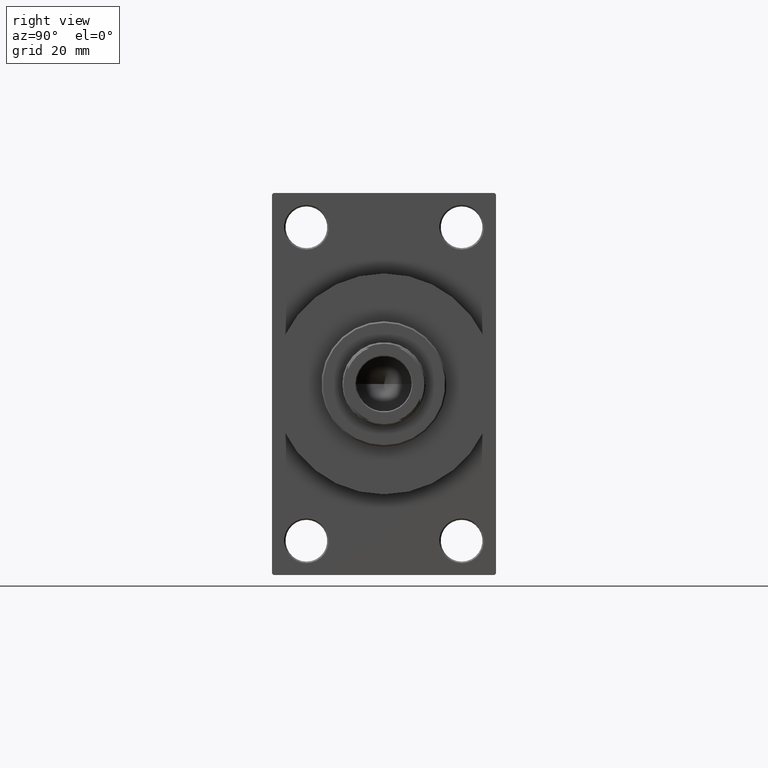
[diagram: clean part render]
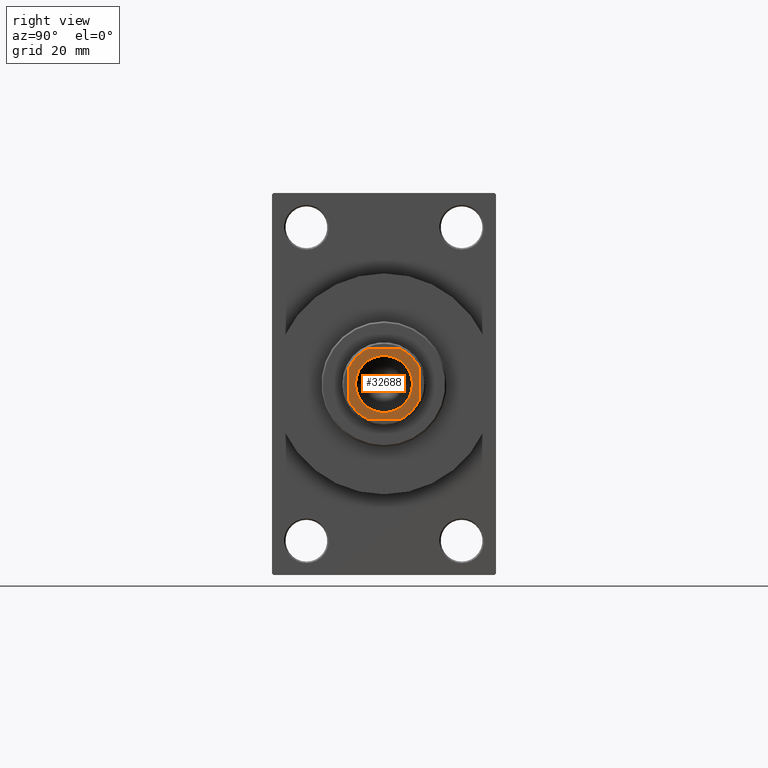
[diagram: same view with one face highlighted and labeled with its STEP entity id]
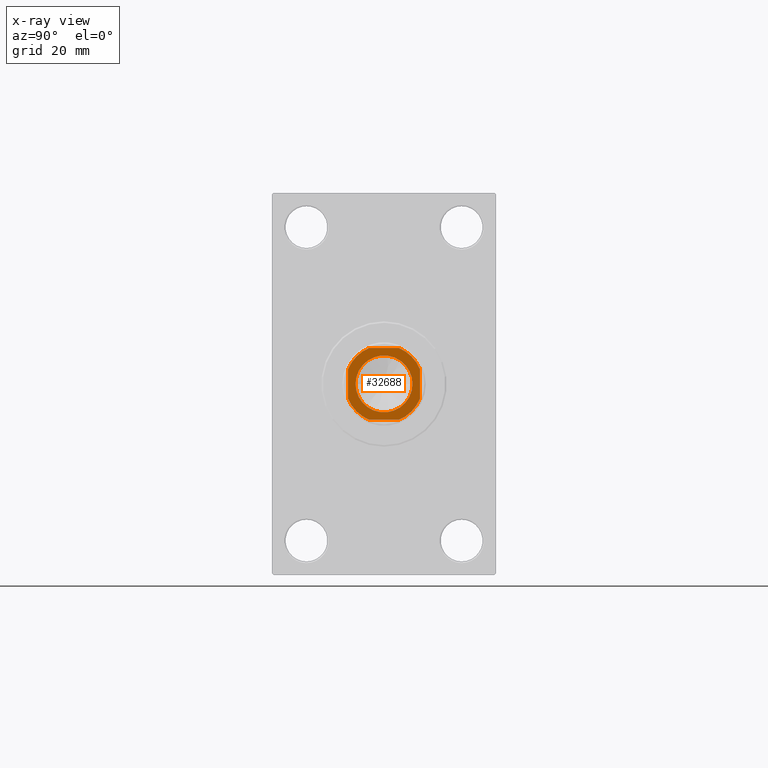
[diagram: x-ray of the same camera — body ghosted, the highlighted face saturated]
A machine part, right view. The second image highlights one B-rep face of the part: STEP entity #32688.
The next image is the same camera in x-ray: the body ghosted, the highlighted face saturated — about 0% of this face is hidden behind the body in this view.
In plain terms, the highlighted planar face has unit normal (1, 0, 0).
Its self-contained STEP definition (entity closure, byte-faithful):
#61 = LINE ( 'NONE', #43493, #40673 ) ;
#232 = VERTEX_POINT ( 'NONE', #24885 ) ;
#336 = EDGE_CURVE ( 'NONE', #10361, #18054, #23537, .T. ) ;
#607 = CARTESIAN_POINT ( 'NONE',  ( -12.00000000000000000, 12.00000000000000000, 142.0000000000000284 ) ) ;
#954 = LINE ( 'NONE', #26512, #23124 ) ;
#1001 = AXIS2_PLACEMENT_3D ( 'NONE', #9602, #27983, #34907 ) ;
#1076 = EDGE_CURVE ( 'NONE', #26647, #11304, #35738, .T. ) ;
#1418 = DIRECTION ( 'NONE',  ( 1.000000000000000000, 0.000000000000000000, 0.000000000000000000 ) ) ;
#1480 = VERTEX_POINT ( 'NONE', #26483 ) ;
#2686 = CARTESIAN_POINT ( 'NONE',  ( 0.000000000000000000, 0.000000000000000000, 142.0000000000000284 ) ) ;
#3302 = CIRCLE ( 'NONE', #1001, 9.550000000000002487 ) ;
#3362 = FACE_OUTER_BOUND ( 'NONE', #35276, .T. ) ;
#3607 = AXIS2_PLACEMENT_3D ( 'NONE', #21987, #36550, #18413 ) ;
#3717 = DIRECTION ( 'NONE',  ( 1.000000000000000000, 0.000000000000000000, 0.000000000000000000 ) ) ;
#4104 = CARTESIAN_POINT ( 'NONE',  ( 0.000000000000000000, 0.000000000000000000, 142.0000000000000284 ) ) ;
#6705 = ORIENTED_EDGE ( 'NONE', *, *, #19134, .T. ) ;
#7294 = EDGE_CURVE ( 'NONE', #232, #26647, #18543, .T. ) ;
#8976 = VERTEX_POINT ( 'NONE', #11883 ) ;
#9602 = CARTESIAN_POINT ( 'NONE',  ( 0.000000000000000000, 0.000000000000000000, 142.0000000000000284 ) ) ;
#10172 = CIRCLE ( 'NONE', #24657, 9.550000000000002487 ) ;
#10361 = VERTEX_POINT ( 'NONE', #19261 ) ;
#11304 = VERTEX_POINT ( 'NONE', #45960 ) ;
#11883 = CARTESIAN_POINT ( 'NONE',  ( 9.550000000000002487, 0.000000000000000000, 142.0000000000000284 ) ) ;
#13233 = AXIS2_PLACEMENT_3D ( 'NONE', #43598, #21425, #35978 ) ;
#14252 = ORIENTED_EDGE ( 'NONE', *, *, #1076, .T. ) ;
#14912 = VERTEX_POINT ( 'NONE', #34013 ) ;
#15443 = EDGE_CURVE ( 'NONE', #11304, #14912, #954, .T. ) ;
#15534 = AXIS2_PLACEMENT_3D ( 'NONE', #26358, #16077, #26592 ) ;
#15678 = ORIENTED_EDGE ( 'NONE', *, *, #19948, .T. ) ;
#16077 = DIRECTION ( 'NONE',  ( -0.000000000000000000, 0.000000000000000000, 1.000000000000000000 ) ) ;
#16553 = EDGE_CURVE ( 'NONE', #14912, #1480, #33828, .T. ) ;
#17595 = ORIENTED_EDGE ( 'NONE', *, *, #36576, .T. ) ;
#17939 = PLANE ( 'NONE',  #3607 ) ;
#18054 = VERTEX_POINT ( 'NONE', #34685 ) ;
#18091 = LINE ( 'NONE', #32642, #36423 ) ;
#18328 = DIRECTION ( 'NONE',  ( -1.000000000000000000, -0.000000000000000000, -0.000000000000000000 ) ) ;
#18413 = DIRECTION ( 'NONE',  ( 1.000000000000000000, 0.000000000000000000, 0.000000000000000000 ) ) ;
#18543 = LINE ( 'NONE', #607, #29850 ) ;
#19134 = EDGE_CURVE ( 'NONE', #8976, #46398, #3302, .T. ) ;
#19261 = CARTESIAN_POINT ( 'NONE',  ( 12.00000000000000000, 4.999999999999976907, 142.0000000000000284 ) ) ;
#19948 = EDGE_CURVE ( 'NONE', #20672, #232, #43741, .T. ) ;
#20166 = EDGE_CURVE ( 'NONE', #1480, #10361, #61, .T. ) ;
#20239 = ORIENTED_EDGE ( 'NONE', *, *, #20166, .T. ) ;
#20672 = VERTEX_POINT ( 'NONE', #33585 ) ;
#21270 = AXIS2_PLACEMENT_3D ( 'NONE', #2686, #28234, #42530 ) ;
#21425 = DIRECTION ( 'NONE',  ( -0.000000000000000000, 0.000000000000000000, 1.000000000000000000 ) ) ;
#21987 = CARTESIAN_POINT ( 'NONE',  ( 0.000000000000000000, 0.000000000000000000, 142.0000000000000284 ) ) ;
#23124 = VECTOR ( 'NONE', #1418, 1000.000000000000000 ) ;
#23537 = CIRCLE ( 'NONE', #42560, 12.99999999999999112 ) ;
#24154 = EDGE_CURVE ( 'NONE', #46398, #8976, #10172, .T. ) ;
#24657 = AXIS2_PLACEMENT_3D ( 'NONE', #46919, #36191, #3717 ) ;
#24885 = CARTESIAN_POINT ( 'NONE',  ( -11.99999999999999822, 4.999999999999991118, 142.0000000000000284 ) ) ;
#26358 = CARTESIAN_POINT ( 'NONE',  ( 0.000000000000000000, 0.000000000000000000, 142.0000000000000284 ) ) ;
#26483 = CARTESIAN_POINT ( 'NONE',  ( 12.00000000000000000, -4.999999999999984013, 142.0000000000000284 ) ) ;
#26512 = CARTESIAN_POINT ( 'NONE',  ( -11.99999999999999645, -12.00000000000000000, 142.0000000000000284 ) ) ;
#26592 = DIRECTION ( 'NONE',  ( 1.000000000000000000, 0.000000000000000000, 0.000000000000000000 ) ) ;
#26647 = VERTEX_POINT ( 'NONE', #38722 ) ;
#27983 = DIRECTION ( 'NONE',  ( 0.000000000000000000, -0.000000000000000000, -1.000000000000000000 ) ) ;
#28234 = DIRECTION ( 'NONE',  ( -0.000000000000000000, 0.000000000000000000, 1.000000000000000000 ) ) ;
#29423 = DIRECTION ( 'NONE',  ( 1.000000000000000000, 0.000000000000000000, 0.000000000000000000 ) ) ;
#29850 = VECTOR ( 'NONE', #33097, 1000.000000000000000 ) ;
#30149 = CARTESIAN_POINT ( 'NONE',  ( -9.550000000000002487, 1.169537693185722755E-15, 142.0000000000000284 ) ) ;
#32446 = EDGE_LOOP ( 'NONE', ( #6705, #41226 ) ) ;
#32642 = CARTESIAN_POINT ( 'NONE',  ( -12.00000000000000000, 12.00000000000000000, 142.0000000000000284 ) ) ;
#32688 = ADVANCED_FACE ( 'NONE', ( #36069, #3362 ), #17939, .T. ) ;
#32998 = DIRECTION ( 'NONE',  ( -0.000000000000000000, 0.000000000000000000, 1.000000000000000000 ) ) ;
#33077 = ORIENTED_EDGE ( 'NONE', *, *, #336, .T. ) ;
#33097 = DIRECTION ( 'NONE',  ( 1.445602896647339163E-16, -1.000000000000000000, 0.000000000000000000 ) ) ;
#33585 = CARTESIAN_POINT ( 'NONE',  ( -4.999999999999990230, 12.00000000000000000, 142.0000000000000284 ) ) ;
#33588 = ORIENTED_EDGE ( 'NONE', *, *, #15443, .T. ) ;
#33828 = CIRCLE ( 'NONE', #13233, 12.99999999999999467 ) ;
#34013 = CARTESIAN_POINT ( 'NONE',  ( 4.999999999999984901, -12.00000000000000000, 142.0000000000000284 ) ) ;
#34685 = CARTESIAN_POINT ( 'NONE',  ( 4.999999999999976907, 12.00000000000000000, 142.0000000000000284 ) ) ;
#34907 = DIRECTION ( 'NONE',  ( 1.000000000000000000, 0.000000000000000000, 0.000000000000000000 ) ) ;
#35276 = EDGE_LOOP ( 'NONE', ( #20239, #33077, #17595, #15678, #38679, #14252, #33588, #39322 ) ) ;
#35738 = CIRCLE ( 'NONE', #21270, 12.99999999999999467 ) ;
#35978 = DIRECTION ( 'NONE',  ( 1.000000000000000000, 0.000000000000000000, 0.000000000000000000 ) ) ;
#36069 = FACE_BOUND ( 'NONE', #32446, .T. ) ;
#36191 = DIRECTION ( 'NONE',  ( 0.000000000000000000, -0.000000000000000000, -1.000000000000000000 ) ) ;
#36423 = VECTOR ( 'NONE', #18328, 1000.000000000000000 ) ;
#36550 = DIRECTION ( 'NONE',  ( -0.000000000000000000, 0.000000000000000000, 1.000000000000000000 ) ) ;
#36576 = EDGE_CURVE ( 'NONE', #18054, #20672, #18091, .T. ) ;
#38679 = ORIENTED_EDGE ( 'NONE', *, *, #7294, .T. ) ;
#38722 = CARTESIAN_POINT ( 'NONE',  ( -11.99999999999999822, -4.999999999999989342, 142.0000000000000284 ) ) ;
#39322 = ORIENTED_EDGE ( 'NONE', *, *, #16553, .T. ) ;
#40673 = VECTOR ( 'NONE', #43249, 1000.000000000000000 ) ;
#41226 = ORIENTED_EDGE ( 'NONE', *, *, #24154, .T. ) ;
#42530 = DIRECTION ( 'NONE',  ( 1.000000000000000000, 0.000000000000000000, 0.000000000000000000 ) ) ;
#42560 = AXIS2_PLACEMENT_3D ( 'NONE', #4104, #32998, #29423 ) ;
#43249 = DIRECTION ( 'NONE',  ( -0.000000000000000000, 1.000000000000000000, -0.000000000000000000 ) ) ;
#43493 = CARTESIAN_POINT ( 'NONE',  ( 12.00000000000000000, 12.00000000000000000, 142.0000000000000284 ) ) ;
#43598 = CARTESIAN_POINT ( 'NONE',  ( 0.000000000000000000, 0.000000000000000000, 142.0000000000000284 ) ) ;
#43741 = CIRCLE ( 'NONE', #15534, 12.99999999999999645 ) ;
#45960 = CARTESIAN_POINT ( 'NONE',  ( -4.999999999999984901, -12.00000000000000000, 142.0000000000000284 ) ) ;
#46398 = VERTEX_POINT ( 'NONE', #30149 ) ;
#46919 = CARTESIAN_POINT ( 'NONE',  ( 0.000000000000000000, 0.000000000000000000, 142.0000000000000284 ) ) ;